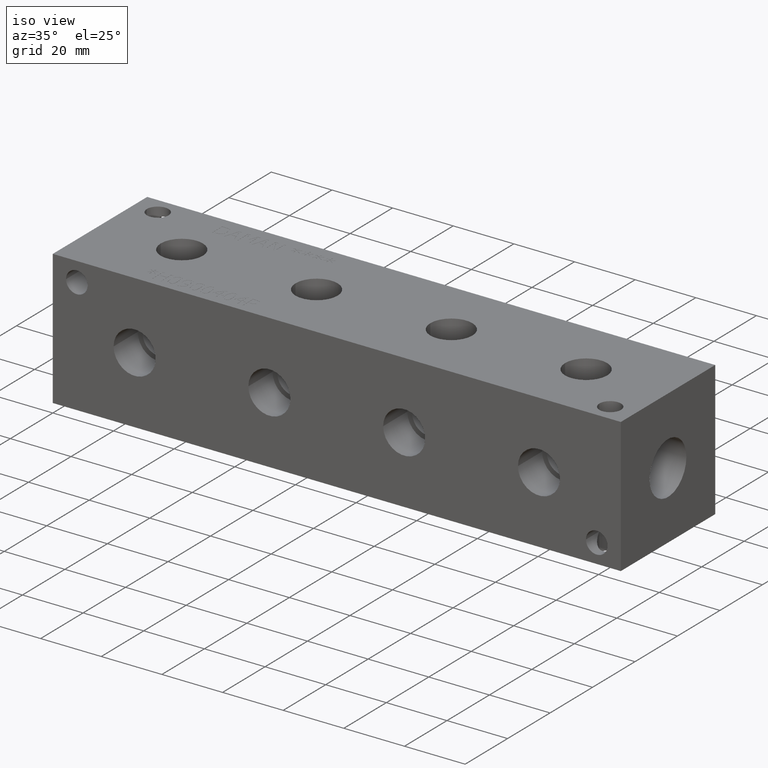
[diagram: clean part render]
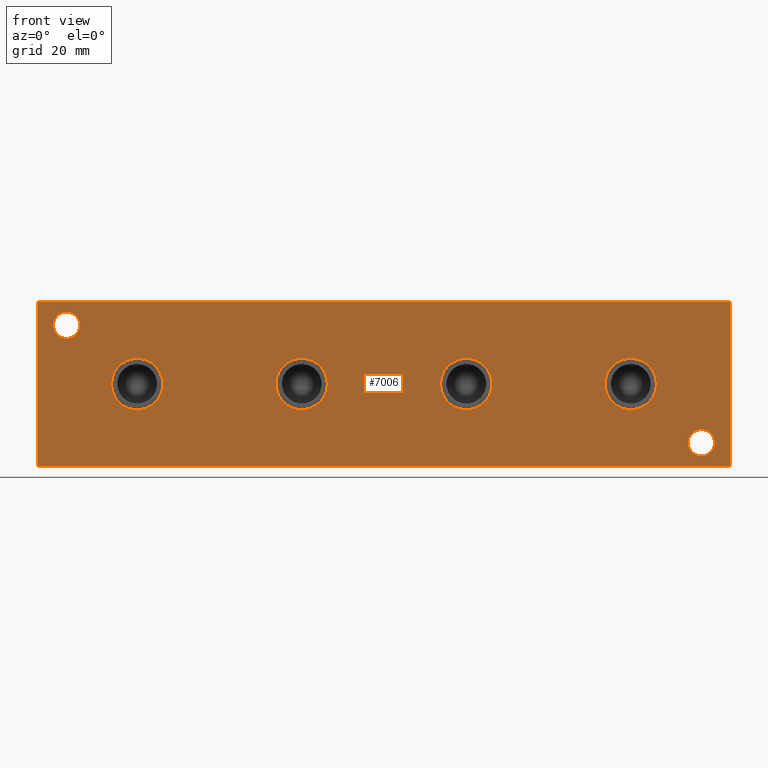
[diagram: tour spotlight — one face highlighted and labeled with its STEP entity id]
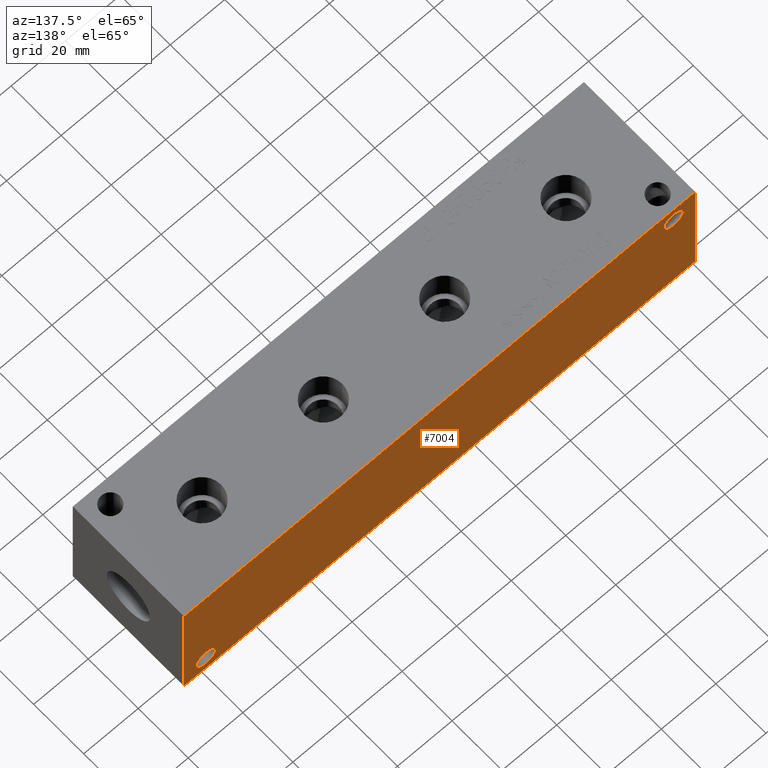
[diagram: tour spotlight — one face highlighted and labeled with its STEP entity id]
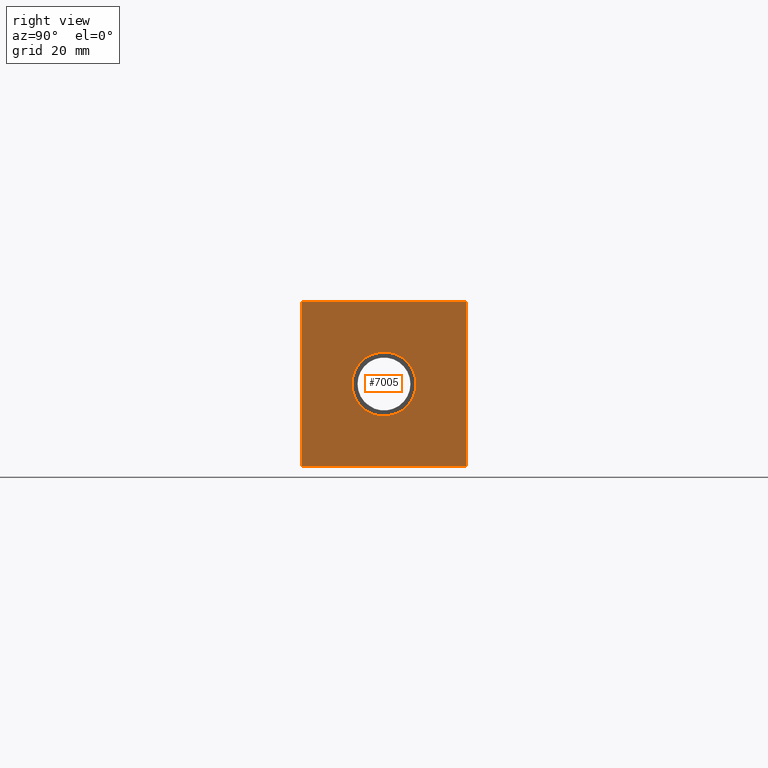
[diagram: tour spotlight — one face highlighted and labeled with its STEP entity id]
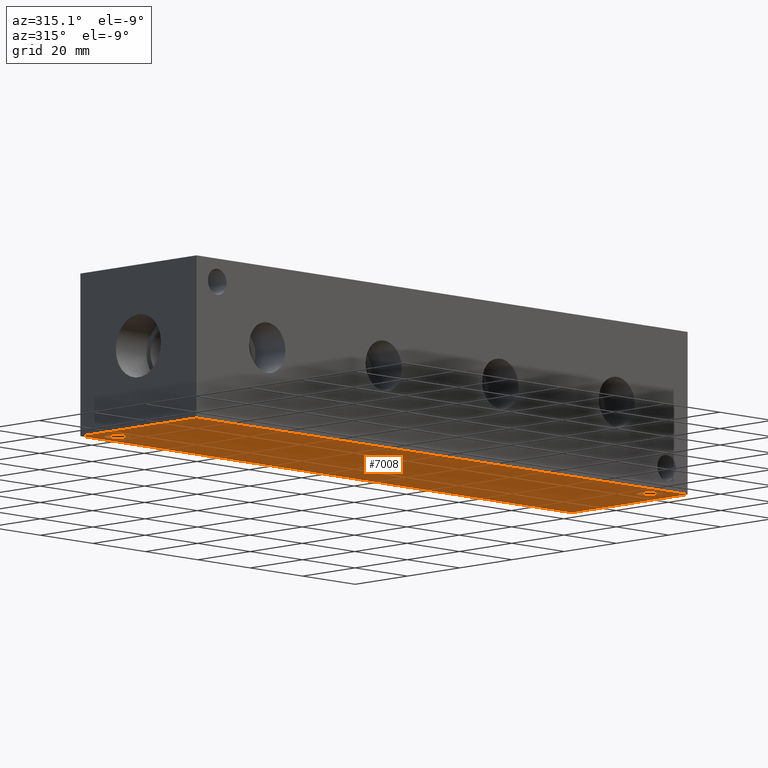
[diagram: tour spotlight — one face highlighted and labeled with its STEP entity id]
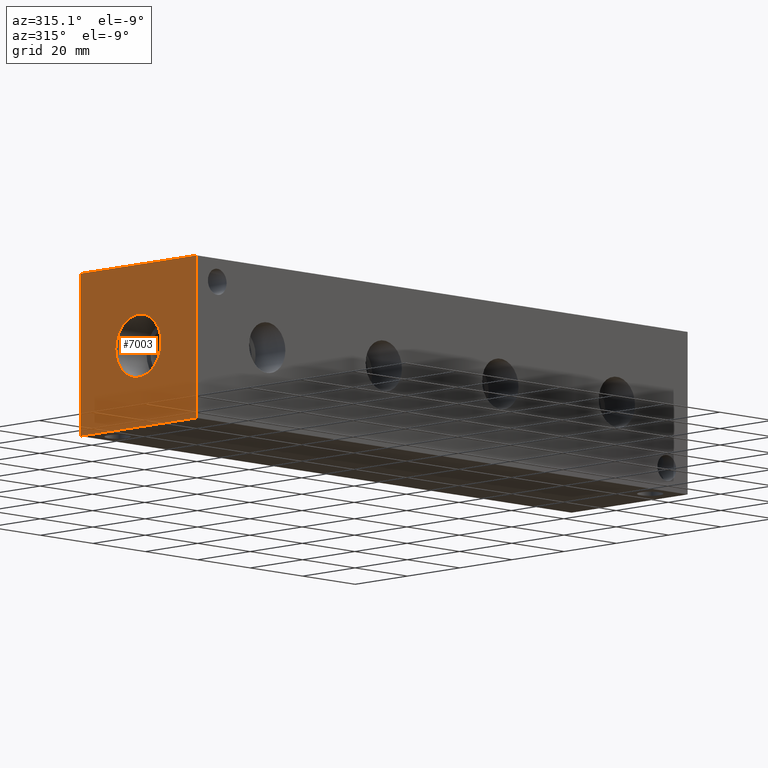
[diagram: tour spotlight — one face highlighted and labeled with its STEP entity id]
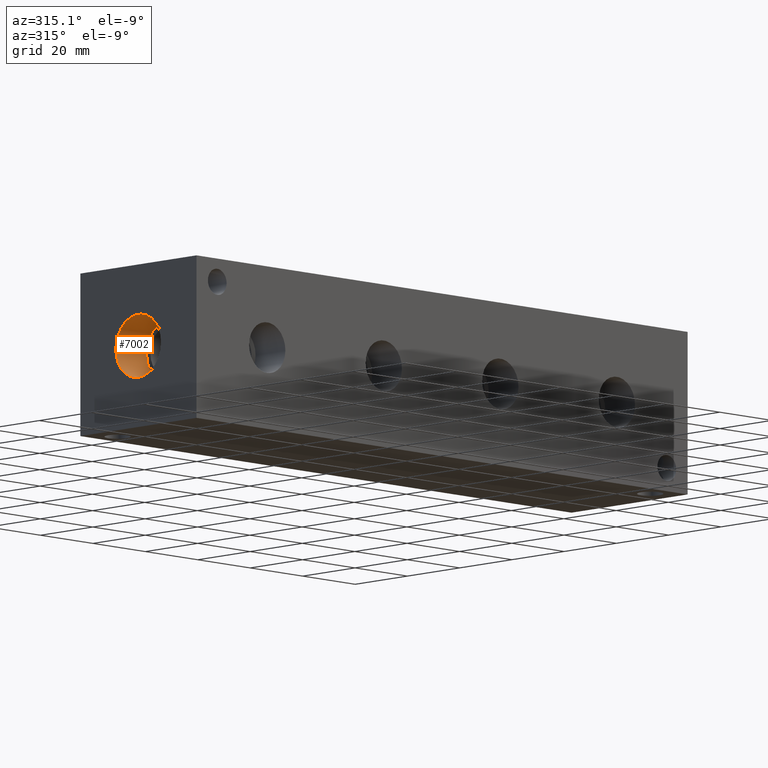
[diagram: tour spotlight — one face highlighted and labeled with its STEP entity id]
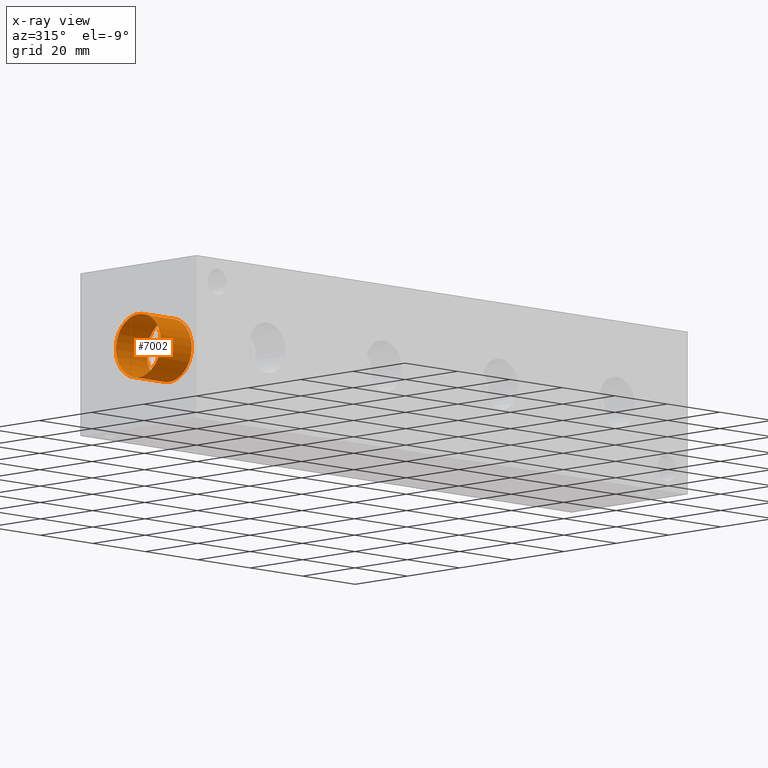
[diagram: x-ray of the same camera — body ghosted, this tour face saturated]
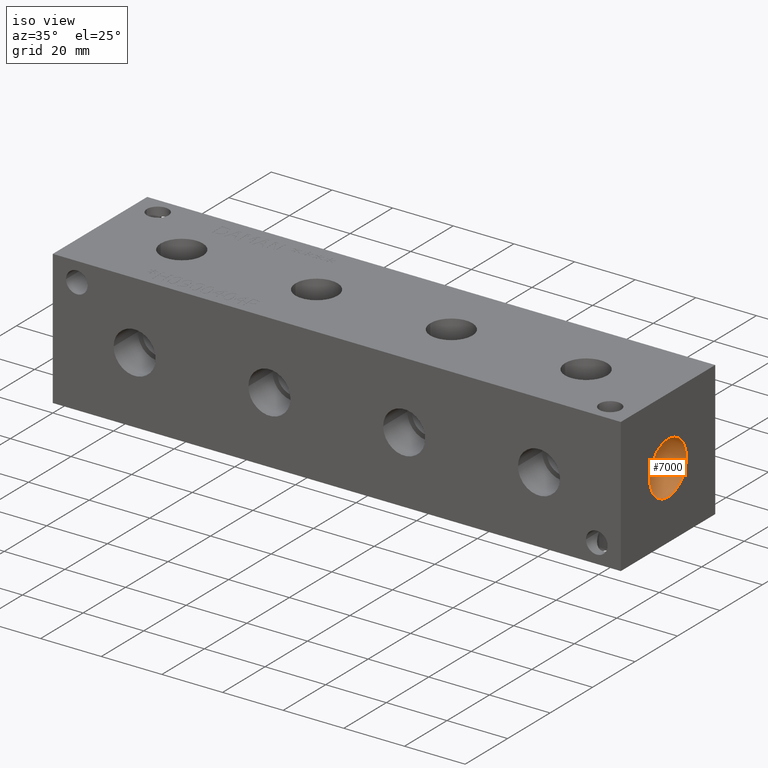
[diagram: tour spotlight — one face highlighted and labeled with its STEP entity id]
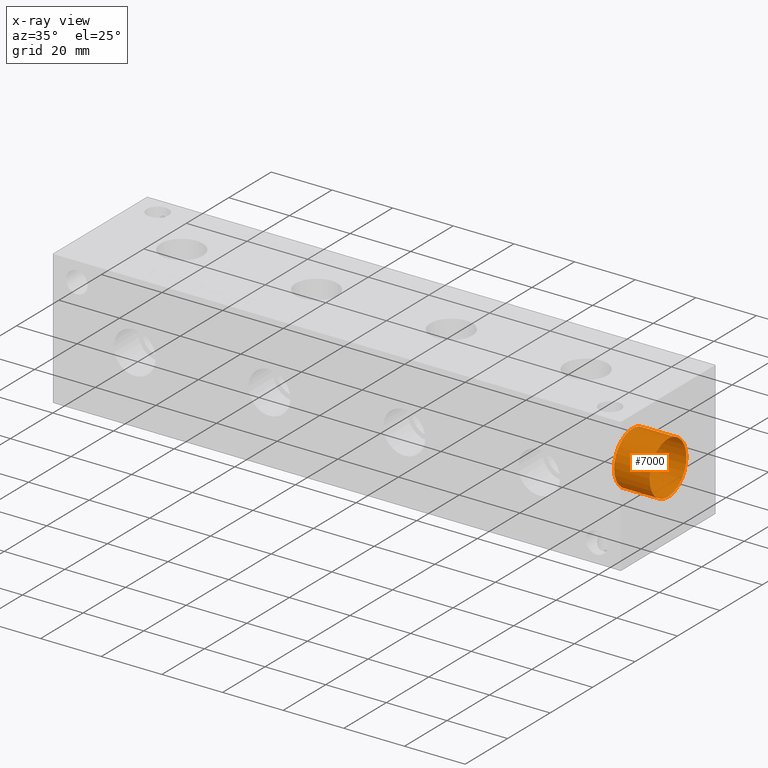
[diagram: x-ray of the same camera — body ghosted, this tour face saturated]
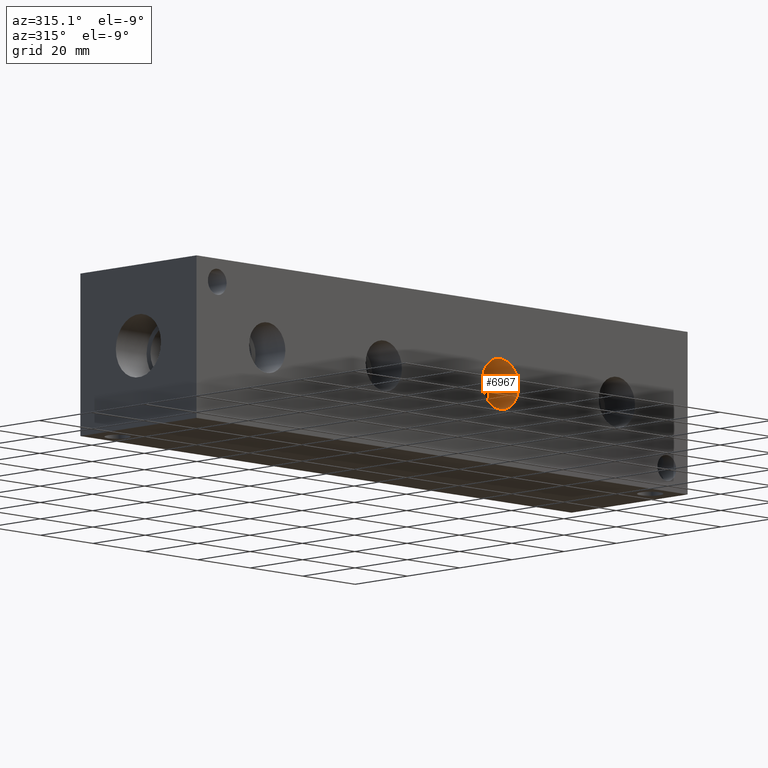
[diagram: tour spotlight — one face highlighted and labeled with its STEP entity id]
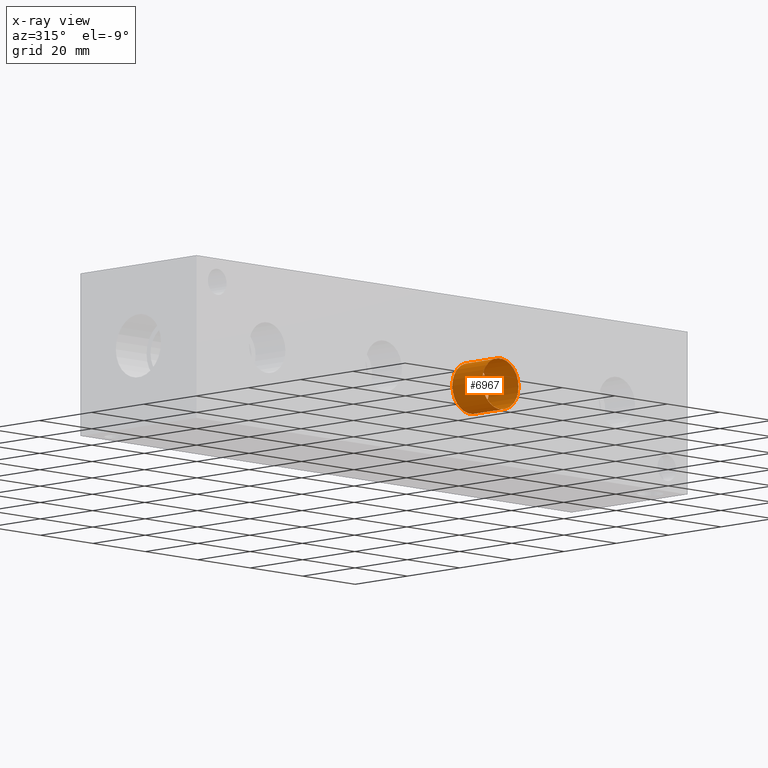
[diagram: x-ray of the same camera — body ghosted, this tour face saturated]
A machine part: a face-by-face anatomy tour. The part has 347 B-rep faces; the first image is the clean iso view, then the 8 largest visible faces are spotlighted one at a time (largest first), each with its STEP entity span.

Face 1 — front view, entity #7006. In plain terms, the highlighted planar face has unit normal (0, -1, 0).
Definition (entity closure, byte-faithful):
#68=CIRCLE('',#7261,6.9342);
#69=CIRCLE('',#7262,6.9342);
#73=CIRCLE('',#7270,6.9342);
#74=CIRCLE('',#7271,6.9342);
#78=CIRCLE('',#7279,6.9342);
#79=CIRCLE('',#7280,6.9342);
#83=CIRCLE('',#7288,6.9342);
#84=CIRCLE('',#7289,6.9342);
#87=CIRCLE('',#7296,3.5687);
#88=CIRCLE('',#7297,3.5687);
#90=CIRCLE('',#7305,3.5687);
#91=CIRCLE('',#7306,3.5687);
#165=FACE_BOUND('',#1152,.T.);
#166=FACE_BOUND('',#1153,.T.);
#167=FACE_BOUND('',#1154,.T.);
#168=FACE_BOUND('',#1155,.T.);
#169=FACE_BOUND('',#1156,.T.);
#170=FACE_BOUND('',#1157,.T.);
#407=PLANE('',#7358);
#754=FACE_OUTER_BOUND('',#1151,.T.);
#1151=EDGE_LOOP('',(#6260,#6261,#6262,#6263));
#1152=EDGE_LOOP('',(#6264,#6265));
#1153=EDGE_LOOP('',(#6266,#6267));
#1154=EDGE_LOOP('',(#6268,#6269));
#1155=EDGE_LOOP('',(#6270,#6271));
#1156=EDGE_LOOP('',(#6272,#6273));
#1157=EDGE_LOOP('',(#6274,#6275));
#1441=LINE('',#10585,#2140);
#1854=LINE('',#12072,#2553);
#1859=LINE('',#12081,#2558);
#1860=LINE('',#12083,#2559);
#2140=VECTOR('',#7800,10.);
#2553=VECTOR('',#8721,10.);
#2558=VECTOR('',#8730,10.);
#2559=VECTOR('',#8733,10.);
#3036=VERTEX_POINT('',#10583);
#3037=VERTEX_POINT('',#10584);
#3317=VERTEX_POINT('',#11532);
#3318=VERTEX_POINT('',#11533);
#3326=VERTEX_POINT('',#11594);
#3327=VERTEX_POINT('',#11595);
#3335=VERTEX_POINT('',#11656);
#3336=VERTEX_POINT('',#11657);
#3344=VERTEX_POINT('',#11718);
#3345=VERTEX_POINT('',#11719);
#3360=VERTEX_POINT('',#11959);
#3361=VERTEX_POINT('',#11960);
#3365=VERTEX_POINT('',#11975);
#3366=VERTEX_POINT('',#11976);
#3393=VERTEX_POINT('',#12070);
#3395=VERTEX_POINT('',#12079);
#3825=EDGE_CURVE('',#3036,#3037,#1441,.T.);
#4237=EDGE_CURVE('',#3317,#3318,#68,.T.);
#4238=EDGE_CURVE('',#3318,#3317,#69,.T.);
#4248=EDGE_CURVE('',#3326,#3327,#73,.T.);
#4249=EDGE_CURVE('',#3327,#3326,#74,.T.);
#4259=EDGE_CURVE('',#3335,#3336,#78,.T.);
#4260=EDGE_CURVE('',#3336,#3335,#79,.T.);
#4270=EDGE_CURVE('',#3344,#3345,#83,.T.);
#4271=EDGE_CURVE('',#3345,#3344,#84,.T.);
#4297=EDGE_CURVE('',#3360,#3361,#87,.T.);
#4298=EDGE_CURVE('',#3361,#3360,#88,.T.);
#4306=EDGE_CURVE('',#3365,#3366,#90,.T.);
#4307=EDGE_CURVE('',#3366,#3365,#91,.T.);
#4352=EDGE_CURVE('',#3393,#3036,#1854,.T.);
#4357=EDGE_CURVE('',#3395,#3037,#1859,.T.);
#4358=EDGE_CURVE('',#3393,#3395,#1860,.T.);
#6260=ORIENTED_EDGE('',*,*,#4358,.T.);
#6261=ORIENTED_EDGE('',*,*,#4357,.T.);
#6262=ORIENTED_EDGE('',*,*,#3825,.F.);
#6263=ORIENTED_EDGE('',*,*,#4352,.F.);
#6264=ORIENTED_EDGE('',*,*,#4237,.T.);
#6265=ORIENTED_EDGE('',*,*,#4238,.T.);
#6266=ORIENTED_EDGE('',*,*,#4248,.T.);
#6267=ORIENTED_EDGE('',*,*,#4249,.T.);
#6268=ORIENTED_EDGE('',*,*,#4259,.T.);
#6269=ORIENTED_EDGE('',*,*,#4260,.T.);
#6270=ORIENTED_EDGE('',*,*,#4270,.T.);
#6271=ORIENTED_EDGE('',*,*,#4271,.T.);
#6272=ORIENTED_EDGE('',*,*,#4297,.T.);
#6273=ORIENTED_EDGE('',*,*,#4298,.T.);
#6274=ORIENTED_EDGE('',*,*,#4306,.T.);
#6275=ORIENTED_EDGE('',*,*,#4307,.T.);
#7006=ADVANCED_FACE('',(#754,#165,#166,#167,#168,#169,#170),#407,.T.);
#7261=AXIS2_PLACEMENT_3D('',#11534,#8499,#8500);
#7262=AXIS2_PLACEMENT_3D('',#11535,#8501,#8502);
#7270=AXIS2_PLACEMENT_3D('',#11596,#8519,#8520);
#7271=AXIS2_PLACEMENT_3D('',#11597,#8521,#8522);
#7279=AXIS2_PLACEMENT_3D('',#11658,#8539,#8540);
#7280=AXIS2_PLACEMENT_3D('',#11659,#8541,#8542);
#7288=AXIS2_PLACEMENT_3D('',#11720,#8559,#8560);
#7289=AXIS2_PLACEMENT_3D('',#11721,#8561,#8562);
#7296=AXIS2_PLACEMENT_3D('',#11961,#8582,#8583);
#7297=AXIS2_PLACEMENT_3D('',#11962,#8584,#8585);
#7305=AXIS2_PLACEMENT_3D('',#11977,#8602,#8603);
#7306=AXIS2_PLACEMENT_3D('',#11978,#8604,#8605);
#7358=AXIS2_PLACEMENT_3D('',#12082,#8731,#8732);
#7800=DIRECTION('',(1.,0.,0.));
#8499=DIRECTION('center_axis',(0.,1.,0.));
#8500=DIRECTION('ref_axis',(1.,0.,0.));
#8501=DIRECTION('center_axis',(0.,1.,0.));
#8502=DIRECTION('ref_axis',(1.,0.,0.));
#8519=DIRECTION('center_axis',(0.,1.,0.));
#8520=DIRECTION('ref_axis',(1.,0.,0.));
#8521=DIRECTION('center_axis',(0.,1.,0.));
#8522=DIRECTION('ref_axis',(1.,0.,0.));
#8539=DIRECTION('center_axis',(0.,1.,0.));
#8540=DIRECTION('ref_axis',(1.,0.,0.));
#8541=DIRECTION('center_axis',(0.,1.,0.));
#8542=DIRECTION('ref_axis',(1.,0.,0.));
#8559=DIRECTION('center_axis',(0.,1.,0.));
#8560=DIRECTION('ref_axis',(1.,0.,0.));
#8561=DIRECTION('center_axis',(0.,1.,0.));
#8562=DIRECTION('ref_axis',(1.,0.,0.));
#8582=DIRECTION('center_axis',(0.,1.,0.));
#8583=DIRECTION('ref_axis',(1.,0.,0.));
#8584=DIRECTION('center_axis',(0.,1.,0.));
#8585=DIRECTION('ref_axis',(1.,0.,0.));
#8602=DIRECTION('center_axis',(0.,1.,0.));
#8603=DIRECTION('ref_axis',(1.,0.,0.));
#8604=DIRECTION('center_axis',(0.,1.,0.));
#8605=DIRECTION('ref_axis',(1.,0.,0.));
#8721=DIRECTION('',(0.,0.,1.));
#8730=DIRECTION('',(0.,0.,1.));
#8731=DIRECTION('center_axis',(0.,-1.,0.));
#8732=DIRECTION('ref_axis',(1.,0.,0.));
#8733=DIRECTION('',(1.,0.,0.));
#10583=CARTESIAN_POINT('',(0.,0.,44.45));
#10584=CARTESIAN_POINT('',(187.325,0.,44.45));
#10585=CARTESIAN_POINT('',(0.,0.,44.45));
#11532=CARTESIAN_POINT('',(122.809,0.,22.225));
#11533=CARTESIAN_POINT('',(108.9406,0.,22.225));
#11534=CARTESIAN_POINT('Origin',(115.8748,0.,22.225));
#11535=CARTESIAN_POINT('Origin',(115.8748,0.,22.225));
#11594=CARTESIAN_POINT('',(33.909,0.,22.225));
#11595=CARTESIAN_POINT('',(20.0406,0.,22.225));
#11596=CARTESIAN_POINT('Origin',(26.9748,0.,22.225));
#11597=CARTESIAN_POINT('Origin',(26.9748,0.,22.225));
#11656=CARTESIAN_POINT('',(78.359,0.,22.225));
#11657=CARTESIAN_POINT('',(64.4906,0.,22.225));
#11658=CARTESIAN_POINT('Origin',(71.4248,0.,22.225));
#11659=CARTESIAN_POINT('Origin',(71.4248,0.,22.225));
#11718=CARTESIAN_POINT('',(167.259,0.,22.225));
#11719=CARTESIAN_POINT('',(153.3906,0.,22.225));
#11720=CARTESIAN_POINT('Origin',(160.3248,0.,22.225));
#11721=CARTESIAN_POINT('Origin',(160.3248,0.,22.225));
#11959=CARTESIAN_POINT('',(11.4935,0.,38.1));
#11960=CARTESIAN_POINT('',(4.3561,0.,38.1));
#11961=CARTESIAN_POINT('Origin',(7.9248,0.,38.1));
#11962=CARTESIAN_POINT('Origin',(7.9248,0.,38.1));
#11975=CARTESIAN_POINT('',(182.9435,0.,6.35));
#11976=CARTESIAN_POINT('',(175.8061,0.,6.35));
#11977=CARTESIAN_POINT('Origin',(179.3748,0.,6.35));
#11978=CARTESIAN_POINT('Origin',(179.3748,0.,6.35));
#12070=CARTESIAN_POINT('',(0.,0.,0.));
#12072=CARTESIAN_POINT('',(0.,0.,0.));
#12079=CARTESIAN_POINT('',(187.325,0.,0.));
#12081=CARTESIAN_POINT('',(187.325,0.,0.));
#12082=CARTESIAN_POINT('Origin',(0.,0.,0.));
#12083=CARTESIAN_POINT('',(0.,0.,0.));

Face 2 — auxiliary view, entity #7004. In plain terms, the highlighted planar face has unit normal (0, 1, 0).
Definition (entity closure, byte-faithful):
#89=CIRCLE('',#7303,3.5687);
#92=CIRCLE('',#7312,3.5687);
#162=FACE_BOUND('',#1147,.T.);
#163=FACE_BOUND('',#1148,.T.);
#405=PLANE('',#7356);
#752=FACE_OUTER_BOUND('',#1146,.T.);
#1146=EDGE_LOOP('',(#6248,#6249,#6250,#6251));
#1147=EDGE_LOOP('',(#6252));
#1148=EDGE_LOOP('',(#6253));
#1443=LINE('',#10589,#2142);
#1855=LINE('',#12073,#2554);
#1856=LINE('',#12076,#2555);
#1857=LINE('',#12077,#2556);
#2142=VECTOR('',#7802,10.);
#2554=VECTOR('',#8722,10.);
#2555=VECTOR('',#8725,10.);
#2556=VECTOR('',#8726,10.);
#3038=VERTEX_POINT('',#10586);
#3039=VERTEX_POINT('',#10588);
#3364=VERTEX_POINT('',#11971);
#3369=VERTEX_POINT('',#11987);
#3392=VERTEX_POINT('',#12069);
#3394=VERTEX_POINT('',#12075);
#3827=EDGE_CURVE('',#3038,#3039,#1443,.T.);
#4305=EDGE_CURVE('',#3364,#3364,#89,.T.);
#4314=EDGE_CURVE('',#3369,#3369,#92,.T.);
#4353=EDGE_CURVE('',#3392,#3039,#1855,.T.);
#4354=EDGE_CURVE('',#3394,#3392,#1856,.T.);
#4355=EDGE_CURVE('',#3394,#3038,#1857,.T.);
#6248=ORIENTED_EDGE('',*,*,#4354,.T.);
#6249=ORIENTED_EDGE('',*,*,#4353,.T.);
#6250=ORIENTED_EDGE('',*,*,#3827,.F.);
#6251=ORIENTED_EDGE('',*,*,#4355,.F.);
#6252=ORIENTED_EDGE('',*,*,#4305,.T.);
#6253=ORIENTED_EDGE('',*,*,#4314,.T.);
#7004=ADVANCED_FACE('',(#752,#162,#163),#405,.T.);
#7303=AXIS2_PLACEMENT_3D('',#11973,#8598,#8599);
#7312=AXIS2_PLACEMENT_3D('',#11989,#8618,#8619);
#7356=AXIS2_PLACEMENT_3D('',#12074,#8723,#8724);
#7802=DIRECTION('',(-1.,0.,0.));
#8598=DIRECTION('center_axis',(0.,-1.,0.));
#8599=DIRECTION('ref_axis',(1.,0.,0.));
#8618=DIRECTION('center_axis',(0.,-1.,0.));
#8619=DIRECTION('ref_axis',(1.,0.,0.));
#8722=DIRECTION('',(0.,0.,1.));
#8723=DIRECTION('center_axis',(0.,1.,0.));
#8724=DIRECTION('ref_axis',(-1.,0.,0.));
#8725=DIRECTION('',(-1.,0.,0.));
#8726=DIRECTION('',(0.,0.,1.));
#10586=CARTESIAN_POINT('',(187.325,44.45,44.45));
#10588=CARTESIAN_POINT('',(0.,44.45,44.45));
#10589=CARTESIAN_POINT('',(187.325,44.45,44.45));
#11971=CARTESIAN_POINT('',(4.3561,44.45,38.1));
#11973=CARTESIAN_POINT('Origin',(7.9248,44.45,38.1));
#11987=CARTESIAN_POINT('',(175.8061,44.45,6.35));
#11989=CARTESIAN_POINT('Origin',(179.3748,44.45,6.35));
#12069=CARTESIAN_POINT('',(0.,44.45,0.));
#12073=CARTESIAN_POINT('',(0.,44.45,0.));
#12074=CARTESIAN_POINT('Origin',(187.325,44.45,0.));
#12075=CARTESIAN_POINT('',(187.325,44.45,0.));
#12076=CARTESIAN_POINT('',(187.325,44.45,0.));
#12077=CARTESIAN_POINT('',(187.325,44.45,0.));

Face 3 — right view, entity #7005. In plain terms, the highlighted planar face has unit normal (1, 0, 0).
Definition (entity closure, byte-faithful):
#109=CIRCLE('',#7347,8.6487);
#110=CIRCLE('',#7348,8.6487);
#164=FACE_BOUND('',#1150,.T.);
#406=PLANE('',#7357);
#753=FACE_OUTER_BOUND('',#1149,.T.);
#1149=EDGE_LOOP('',(#6254,#6255,#6256,#6257));
#1150=EDGE_LOOP('',(#6258,#6259));
#1442=LINE('',#10587,#2141);
#1857=LINE('',#12077,#2556);
#1858=LINE('',#12080,#2557);
#1859=LINE('',#12081,#2558);
#2141=VECTOR('',#7801,10.);
#2556=VECTOR('',#8726,10.);
#2557=VECTOR('',#8729,10.);
#2558=VECTOR('',#8730,10.);
#3037=VERTEX_POINT('',#10584);
#3038=VERTEX_POINT('',#10586);
#3386=VERTEX_POINT('',#12052);
#3387=VERTEX_POINT('',#12053);
#3394=VERTEX_POINT('',#12075);
#3395=VERTEX_POINT('',#12079);
#3826=EDGE_CURVE('',#3037,#3038,#1442,.T.);
#4343=EDGE_CURVE('',#3386,#3387,#109,.T.);
#4344=EDGE_CURVE('',#3387,#3386,#110,.T.);
#4355=EDGE_CURVE('',#3394,#3038,#1857,.T.);
#4356=EDGE_CURVE('',#3395,#3394,#1858,.T.);
#4357=EDGE_CURVE('',#3395,#3037,#1859,.T.);
#6254=ORIENTED_EDGE('',*,*,#4356,.T.);
#6255=ORIENTED_EDGE('',*,*,#4355,.T.);
#6256=ORIENTED_EDGE('',*,*,#3826,.F.);
#6257=ORIENTED_EDGE('',*,*,#4357,.F.);
#6258=ORIENTED_EDGE('',*,*,#4343,.T.);
#6259=ORIENTED_EDGE('',*,*,#4344,.T.);
#7005=ADVANCED_FACE('',(#753,#164),#406,.T.);
#7347=AXIS2_PLACEMENT_3D('',#12054,#8700,#8701);
#7348=AXIS2_PLACEMENT_3D('',#12055,#8702,#8703);
#7357=AXIS2_PLACEMENT_3D('',#12078,#8727,#8728);
#7801=DIRECTION('',(0.,1.,0.));
#8700=DIRECTION('center_axis',(-1.,0.,0.));
#8701=DIRECTION('ref_axis',(0.,1.,0.));
#8702=DIRECTION('center_axis',(-1.,0.,0.));
#8703=DIRECTION('ref_axis',(0.,1.,0.));
#8726=DIRECTION('',(0.,0.,1.));
#8727=DIRECTION('center_axis',(1.,0.,0.));
#8728=DIRECTION('ref_axis',(0.,1.,0.));
#8729=DIRECTION('',(0.,1.,0.));
#8730=DIRECTION('',(0.,0.,1.));
#10584=CARTESIAN_POINT('',(187.325,0.,44.45));
#10586=CARTESIAN_POINT('',(187.325,44.45,44.45));
#10587=CARTESIAN_POINT('',(187.325,0.,44.45));
#12052=CARTESIAN_POINT('',(187.325,30.8737,22.225));
#12053=CARTESIAN_POINT('',(187.325,13.5763,22.225));
#12054=CARTESIAN_POINT('Origin',(187.325,22.225,22.225));
#12055=CARTESIAN_POINT('Origin',(187.325,22.225,22.225));
#12075=CARTESIAN_POINT('',(187.325,44.45,0.));
#12077=CARTESIAN_POINT('',(187.325,44.45,0.));
#12078=CARTESIAN_POINT('Origin',(187.325,0.,0.));
#12079=CARTESIAN_POINT('',(187.325,0.,0.));
#12080=CARTESIAN_POINT('',(187.325,0.,0.));
#12081=CARTESIAN_POINT('',(187.325,0.,0.));

Face 4 — auxiliary view, entity #7008. In plain terms, the highlighted planar face has unit normal (0, 0, 1).
Definition (entity closure, byte-faithful):
#93=CIRCLE('',#7316,3.5687);
#94=CIRCLE('',#7318,3.5687);
#171=FACE_BOUND('',#1160,.T.);
#172=FACE_BOUND('',#1161,.T.);
#409=PLANE('',#7360);
#756=FACE_OUTER_BOUND('',#1159,.T.);
#1159=EDGE_LOOP('',(#6279,#6280,#6281,#6282));
#1160=EDGE_LOOP('',(#6283));
#1161=EDGE_LOOP('',(#6284));
#1853=LINE('',#12071,#2552);
#1856=LINE('',#12076,#2555);
#1858=LINE('',#12080,#2557);
#1860=LINE('',#12083,#2559);
#2552=VECTOR('',#8720,10.);
#2555=VECTOR('',#8725,10.);
#2557=VECTOR('',#8729,10.);
#2559=VECTOR('',#8733,10.);
#3370=VERTEX_POINT('',#11995);
#3371=VERTEX_POINT('',#11999);
#3392=VERTEX_POINT('',#12069);
#3393=VERTEX_POINT('',#12070);
#3394=VERTEX_POINT('',#12075);
#3395=VERTEX_POINT('',#12079);
#4318=EDGE_CURVE('',#3370,#3370,#93,.T.);
#4320=EDGE_CURVE('',#3371,#3371,#94,.T.);
#4351=EDGE_CURVE('',#3392,#3393,#1853,.T.);
#4354=EDGE_CURVE('',#3394,#3392,#1856,.T.);
#4356=EDGE_CURVE('',#3395,#3394,#1858,.T.);
#4358=EDGE_CURVE('',#3393,#3395,#1860,.T.);
#6279=ORIENTED_EDGE('',*,*,#4358,.F.);
#6280=ORIENTED_EDGE('',*,*,#4351,.F.);
#6281=ORIENTED_EDGE('',*,*,#4354,.F.);
#6282=ORIENTED_EDGE('',*,*,#4356,.F.);
#6283=ORIENTED_EDGE('',*,*,#4318,.T.);
#6284=ORIENTED_EDGE('',*,*,#4320,.T.);
#7008=ADVANCED_FACE('',(#756,#171,#172),#409,.F.);
#7316=AXIS2_PLACEMENT_3D('',#11997,#8629,#8630);
#7318=AXIS2_PLACEMENT_3D('',#12001,#8634,#8635);
#7360=AXIS2_PLACEMENT_3D('',#12085,#8736,#8737);
#8629=DIRECTION('center_axis',(0.,0.,1.));
#8630=DIRECTION('ref_axis',(1.,0.,0.));
#8634=DIRECTION('center_axis',(0.,0.,1.));
#8635=DIRECTION('ref_axis',(1.,0.,0.));
#8720=DIRECTION('',(0.,-1.,0.));
#8725=DIRECTION('',(-1.,0.,0.));
#8729=DIRECTION('',(0.,1.,0.));
#8733=DIRECTION('',(1.,0.,0.));
#8736=DIRECTION('center_axis',(0.,0.,1.));
#8737=DIRECTION('ref_axis',(1.,0.,0.));
#11995=CARTESIAN_POINT('',(4.3561,38.1,0.));
#11997=CARTESIAN_POINT('Origin',(7.9248,38.1,0.));
#11999=CARTESIAN_POINT('',(175.8061,6.35,0.));
#12001=CARTESIAN_POINT('Origin',(179.3748,6.35,0.));
#12069=CARTESIAN_POINT('',(0.,44.45,0.));
#12070=CARTESIAN_POINT('',(0.,0.,0.));
#12071=CARTESIAN_POINT('',(0.,44.45,0.));
#12075=CARTESIAN_POINT('',(187.325,44.45,0.));
#12076=CARTESIAN_POINT('',(187.325,44.45,0.));
#12079=CARTESIAN_POINT('',(187.325,0.,0.));
#12080=CARTESIAN_POINT('',(187.325,0.,0.));
#12083=CARTESIAN_POINT('',(0.,0.,0.));
#12085=CARTESIAN_POINT('Origin',(93.6625,22.225,0.));

Face 5 — auxiliary view, entity #7003. In plain terms, the highlighted planar face has unit normal (-1, 0, 0).
Definition (entity closure, byte-faithful):
#113=CIRCLE('',#7353,8.6487);
#114=CIRCLE('',#7354,8.6487);
#161=FACE_BOUND('',#1145,.T.);
#404=PLANE('',#7355);
#751=FACE_OUTER_BOUND('',#1144,.T.);
#1144=EDGE_LOOP('',(#6242,#6243,#6244,#6245));
#1145=EDGE_LOOP('',(#6246,#6247));
#1444=LINE('',#10590,#2143);
#1853=LINE('',#12071,#2552);
#1854=LINE('',#12072,#2553);
#1855=LINE('',#12073,#2554);
#2143=VECTOR('',#7803,10.);
#2552=VECTOR('',#8720,10.);
#2553=VECTOR('',#8721,10.);
#2554=VECTOR('',#8722,10.);
#3036=VERTEX_POINT('',#10583);
#3039=VERTEX_POINT('',#10588);
#3390=VERTEX_POINT('',#12063);
#3391=VERTEX_POINT('',#12064);
#3392=VERTEX_POINT('',#12069);
#3393=VERTEX_POINT('',#12070);
#3828=EDGE_CURVE('',#3039,#3036,#1444,.T.);
#4348=EDGE_CURVE('',#3390,#3391,#113,.T.);
#4349=EDGE_CURVE('',#3391,#3390,#114,.T.);
#4351=EDGE_CURVE('',#3392,#3393,#1853,.T.);
#4352=EDGE_CURVE('',#3393,#3036,#1854,.T.);
#4353=EDGE_CURVE('',#3392,#3039,#1855,.T.);
#6242=ORIENTED_EDGE('',*,*,#4351,.T.);
#6243=ORIENTED_EDGE('',*,*,#4352,.T.);
#6244=ORIENTED_EDGE('',*,*,#3828,.F.);
#6245=ORIENTED_EDGE('',*,*,#4353,.F.);
#6246=ORIENTED_EDGE('',*,*,#4348,.T.);
#6247=ORIENTED_EDGE('',*,*,#4349,.T.);
#7003=ADVANCED_FACE('',(#751,#161),#404,.T.);
#7353=AXIS2_PLACEMENT_3D('',#12065,#8713,#8714);
#7354=AXIS2_PLACEMENT_3D('',#12066,#8715,#8716);
#7355=AXIS2_PLACEMENT_3D('',#12068,#8718,#8719);
#7803=DIRECTION('',(0.,-1.,0.));
#8713=DIRECTION('center_axis',(1.,0.,0.));
#8714=DIRECTION('ref_axis',(0.,1.,0.));
#8715=DIRECTION('center_axis',(1.,0.,0.));
#8716=DIRECTION('ref_axis',(0.,1.,0.));
#8718=DIRECTION('center_axis',(-1.,0.,0.));
#8719=DIRECTION('ref_axis',(0.,-1.,0.));
#8720=DIRECTION('',(0.,-1.,0.));
#8721=DIRECTION('',(0.,0.,1.));
#8722=DIRECTION('',(0.,0.,1.));
#10583=CARTESIAN_POINT('',(0.,0.,44.45));
#10588=CARTESIAN_POINT('',(0.,44.45,44.45));
#10590=CARTESIAN_POINT('',(0.,44.45,44.45));
#12063=CARTESIAN_POINT('',(0.,30.8737,22.225));
#12064=CARTESIAN_POINT('',(0.,13.5763,22.225));
#12065=CARTESIAN_POINT('Origin',(0.,22.225,22.225));
#12066=CARTESIAN_POINT('Origin',(0.,22.225,22.225));
#12068=CARTESIAN_POINT('Origin',(0.,44.45,0.));
#12069=CARTESIAN_POINT('',(0.,44.45,0.));
#12070=CARTESIAN_POINT('',(0.,0.,0.));
#12071=CARTESIAN_POINT('',(0.,44.45,0.));
#12072=CARTESIAN_POINT('',(0.,0.,0.));
#12073=CARTESIAN_POINT('',(0.,44.45,0.));

Face 6 — auxiliary view, entity #7002. An x-ray twin of the same camera follows (body ghosted, this face saturated) — the face is partly hidden behind the body. In plain terms, the highlighted cylindrical surface (bore or boss wall) has radius 8.6487 mm, axis along (-1, 0, 0).
Definition (entity closure, byte-faithful):
#52=CYLINDRICAL_SURFACE('',#7352,8.6487);
#111=CIRCLE('',#7350,8.6487);
#112=CIRCLE('',#7351,8.6487);
#113=CIRCLE('',#7353,8.6487);
#114=CIRCLE('',#7354,8.6487);
#750=FACE_OUTER_BOUND('',#1143,.T.);
#1143=EDGE_LOOP('',(#6236,#6237,#6238,#6239,#6240,#6241));
#1852=LINE('',#12067,#2551);
#2551=VECTOR('',#8717,8.6487);
#3388=VERTEX_POINT('',#12058);
#3389=VERTEX_POINT('',#12059);
#3390=VERTEX_POINT('',#12063);
#3391=VERTEX_POINT('',#12064);
#4346=EDGE_CURVE('',#3388,#3389,#111,.T.);
#4347=EDGE_CURVE('',#3389,#3388,#112,.T.);
#4348=EDGE_CURVE('',#3390,#3391,#113,.T.);
#4349=EDGE_CURVE('',#3391,#3390,#114,.T.);
#4350=EDGE_CURVE('',#3391,#3389,#1852,.T.);
#6236=ORIENTED_EDGE('',*,*,#4348,.F.);
#6237=ORIENTED_EDGE('',*,*,#4349,.F.);
#6238=ORIENTED_EDGE('',*,*,#4350,.T.);
#6239=ORIENTED_EDGE('',*,*,#4346,.F.);
#6240=ORIENTED_EDGE('',*,*,#4347,.F.);
#6241=ORIENTED_EDGE('',*,*,#4350,.F.);
#7002=ADVANCED_FACE('',(#750),#52,.F.);
#7350=AXIS2_PLACEMENT_3D('',#12060,#8707,#8708);
#7351=AXIS2_PLACEMENT_3D('',#12061,#8709,#8710);
#7352=AXIS2_PLACEMENT_3D('',#12062,#8711,#8712);
#7353=AXIS2_PLACEMENT_3D('',#12065,#8713,#8714);
#7354=AXIS2_PLACEMENT_3D('',#12066,#8715,#8716);
#8707=DIRECTION('center_axis',(-1.,0.,0.));
#8708=DIRECTION('ref_axis',(0.,1.,0.));
#8709=DIRECTION('center_axis',(-1.,0.,0.));
#8710=DIRECTION('ref_axis',(0.,1.,0.));
#8711=DIRECTION('center_axis',(-1.,0.,0.));
#8712=DIRECTION('ref_axis',(0.,1.,0.));
#8713=DIRECTION('center_axis',(1.,0.,0.));
#8714=DIRECTION('ref_axis',(0.,1.,0.));
#8715=DIRECTION('center_axis',(1.,0.,0.));
#8716=DIRECTION('ref_axis',(0.,1.,0.));
#8717=DIRECTION('',(1.,0.,0.));
#12058=CARTESIAN_POINT('',(11.7348,30.8737,22.225));
#12059=CARTESIAN_POINT('',(11.7348,13.5763,22.225));
#12060=CARTESIAN_POINT('Origin',(11.7348,22.225,22.225));
#12061=CARTESIAN_POINT('Origin',(11.7348,22.225,22.225));
#12062=CARTESIAN_POINT('Origin',(5.8674,22.225,22.225));
#12063=CARTESIAN_POINT('',(0.,30.8737,22.225));
#12064=CARTESIAN_POINT('',(0.,13.5763,22.225));
#12065=CARTESIAN_POINT('Origin',(0.,22.225,22.225));
#12066=CARTESIAN_POINT('Origin',(0.,22.225,22.225));
#12067=CARTESIAN_POINT('',(5.8674,13.5763,22.225));

Face 7 — iso view, entity #7000. An x-ray twin of the same camera follows (body ghosted, this face saturated) — the face is partly hidden behind the body. In plain terms, the highlighted cylindrical surface (bore or boss wall) has radius 8.6487 mm, axis along (1, 0, 0).
Definition (entity closure, byte-faithful):
#51=CYLINDRICAL_SURFACE('',#7346,8.6487);
#107=CIRCLE('',#7344,8.6487);
#108=CIRCLE('',#7345,8.6487);
#109=CIRCLE('',#7347,8.6487);
#110=CIRCLE('',#7348,8.6487);
#748=FACE_OUTER_BOUND('',#1140,.T.);
#1140=EDGE_LOOP('',(#6227,#6228,#6229,#6230,#6231,#6232));
#1851=LINE('',#12056,#2550);
#2550=VECTOR('',#8704,8.6487);
#3384=VERTEX_POINT('',#12047);
#3385=VERTEX_POINT('',#12048);
#3386=VERTEX_POINT('',#12052);
#3387=VERTEX_POINT('',#12053);
#4341=EDGE_CURVE('',#3384,#3385,#107,.T.);
#4342=EDGE_CURVE('',#3385,#3384,#108,.T.);
#4343=EDGE_CURVE('',#3386,#3387,#109,.T.);
#4344=EDGE_CURVE('',#3387,#3386,#110,.T.);
#4345=EDGE_CURVE('',#3387,#3385,#1851,.T.);
#6227=ORIENTED_EDGE('',*,*,#4343,.F.);
#6228=ORIENTED_EDGE('',*,*,#4344,.F.);
#6229=ORIENTED_EDGE('',*,*,#4345,.T.);
#6230=ORIENTED_EDGE('',*,*,#4341,.F.);
#6231=ORIENTED_EDGE('',*,*,#4342,.F.);
#6232=ORIENTED_EDGE('',*,*,#4345,.F.);
#7000=ADVANCED_FACE('',(#748),#51,.F.);
#7344=AXIS2_PLACEMENT_3D('',#12049,#8694,#8695);
#7345=AXIS2_PLACEMENT_3D('',#12050,#8696,#8697);
#7346=AXIS2_PLACEMENT_3D('',#12051,#8698,#8699);
#7347=AXIS2_PLACEMENT_3D('',#12054,#8700,#8701);
#7348=AXIS2_PLACEMENT_3D('',#12055,#8702,#8703);
#8694=DIRECTION('center_axis',(1.,0.,0.));
#8695=DIRECTION('ref_axis',(0.,1.,0.));
#8696=DIRECTION('center_axis',(1.,0.,0.));
#8697=DIRECTION('ref_axis',(0.,1.,0.));
#8698=DIRECTION('center_axis',(1.,0.,0.));
#8699=DIRECTION('ref_axis',(0.,1.,0.));
#8700=DIRECTION('center_axis',(-1.,0.,0.));
#8701=DIRECTION('ref_axis',(0.,1.,0.));
#8702=DIRECTION('center_axis',(-1.,0.,0.));
#8703=DIRECTION('ref_axis',(0.,1.,0.));
#8704=DIRECTION('',(-1.,0.,0.));
#12047=CARTESIAN_POINT('',(175.5902,30.8737,22.225));
#12048=CARTESIAN_POINT('',(175.5902,13.5763,22.225));
#12049=CARTESIAN_POINT('Origin',(175.5902,22.225,22.225));
#12050=CARTESIAN_POINT('Origin',(175.5902,22.225,22.225));
#12051=CARTESIAN_POINT('Origin',(181.4576,22.225,22.225));
#12052=CARTESIAN_POINT('',(187.325,30.8737,22.225));
#12053=CARTESIAN_POINT('',(187.325,13.5763,22.225));
#12054=CARTESIAN_POINT('Origin',(187.325,22.225,22.225));
#12055=CARTESIAN_POINT('Origin',(187.325,22.225,22.225));
#12056=CARTESIAN_POINT('',(181.4576,13.5763,22.225));

Face 8 — auxiliary view, entity #6967. An x-ray twin of the same camera follows (body ghosted, this face saturated) — the face is partly hidden behind the body. In plain terms, the highlighted cylindrical surface (bore or boss wall) has radius 6.9342 mm, axis along (0, -1, 0).
Definition (entity closure, byte-faithful):
#26=CYLINDRICAL_SURFACE('',#7260,6.9342);
#65=CIRCLE('',#7257,6.9342);
#66=CIRCLE('',#7258,6.9342);
#68=CIRCLE('',#7261,6.9342);
#69=CIRCLE('',#7262,6.9342);
#715=FACE_OUTER_BOUND('',#1099,.T.);
#1099=EDGE_LOOP('',(#6019,#6020,#6021,#6022,#6023,#6024));
#1822=LINE('',#11536,#2521);
#2521=VECTOR('',#8503,6.9342);
#3314=VERTEX_POINT('',#11525);
#3315=VERTEX_POINT('',#11526);
#3317=VERTEX_POINT('',#11532);
#3318=VERTEX_POINT('',#11533);
#4234=EDGE_CURVE('',#3314,#3315,#65,.T.);
#4235=EDGE_CURVE('',#3315,#3314,#66,.T.);
#4237=EDGE_CURVE('',#3317,#3318,#68,.T.);
#4238=EDGE_CURVE('',#3318,#3317,#69,.T.);
#4239=EDGE_CURVE('',#3318,#3315,#1822,.T.);
#6019=ORIENTED_EDGE('',*,*,#4237,.F.);
#6020=ORIENTED_EDGE('',*,*,#4238,.F.);
#6021=ORIENTED_EDGE('',*,*,#4239,.T.);
#6022=ORIENTED_EDGE('',*,*,#4234,.F.);
#6023=ORIENTED_EDGE('',*,*,#4235,.F.);
#6024=ORIENTED_EDGE('',*,*,#4239,.F.);
#6967=ADVANCED_FACE('',(#715),#26,.F.);
#7257=AXIS2_PLACEMENT_3D('',#11527,#8491,#8492);
#7258=AXIS2_PLACEMENT_3D('',#11528,#8493,#8494);
#7260=AXIS2_PLACEMENT_3D('',#11531,#8497,#8498);
#7261=AXIS2_PLACEMENT_3D('',#11534,#8499,#8500);
#7262=AXIS2_PLACEMENT_3D('',#11535,#8501,#8502);
#8491=DIRECTION('center_axis',(0.,-1.,0.));
#8492=DIRECTION('ref_axis',(1.,0.,0.));
#8493=DIRECTION('center_axis',(0.,-1.,0.));
#8494=DIRECTION('ref_axis',(1.,0.,0.));
#8497=DIRECTION('center_axis',(0.,-1.,0.));
#8498=DIRECTION('ref_axis',(1.,0.,0.));
#8499=DIRECTION('center_axis',(0.,1.,0.));
#8500=DIRECTION('ref_axis',(1.,0.,0.));
#8501=DIRECTION('center_axis',(0.,1.,0.));
#8502=DIRECTION('ref_axis',(1.,0.,0.));
#8503=DIRECTION('',(0.,1.,0.));
#11525=CARTESIAN_POINT('',(122.809,11.4046,22.225));
#11526=CARTESIAN_POINT('',(108.9406,11.4046,22.225));
#11527=CARTESIAN_POINT('Origin',(115.8748,11.4046,22.225));
#11528=CARTESIAN_POINT('Origin',(115.8748,11.4046,22.225));
#11531=CARTESIAN_POINT('Origin',(115.8748,5.7023,22.225));
#11532=CARTESIAN_POINT('',(122.809,0.,22.225));
#11533=CARTESIAN_POINT('',(108.9406,0.,22.225));
#11534=CARTESIAN_POINT('Origin',(115.8748,0.,22.225));
#11535=CARTESIAN_POINT('Origin',(115.8748,0.,22.225));
#11536=CARTESIAN_POINT('',(108.9406,5.7023,22.225));